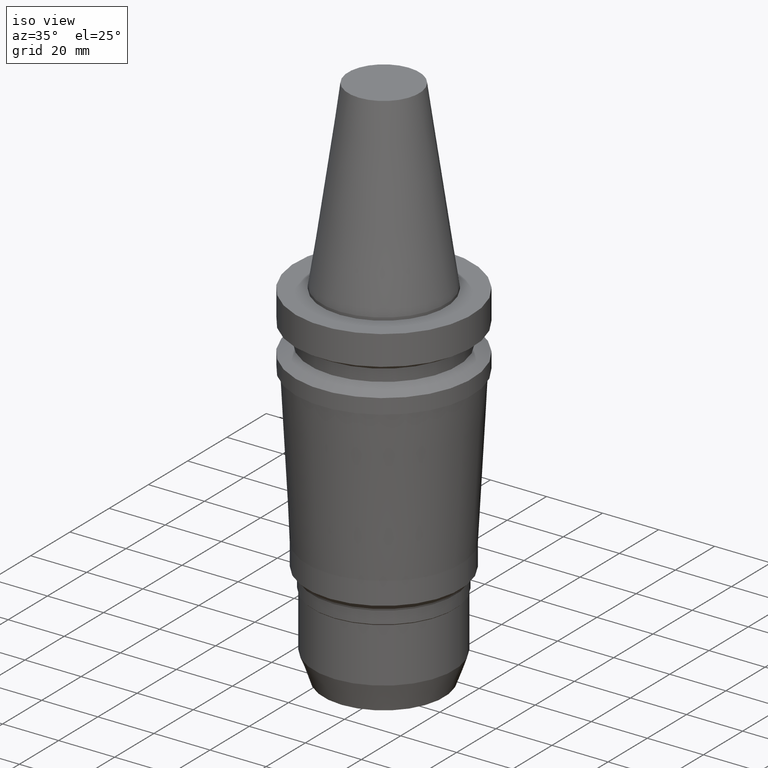
[diagram: clean part render]
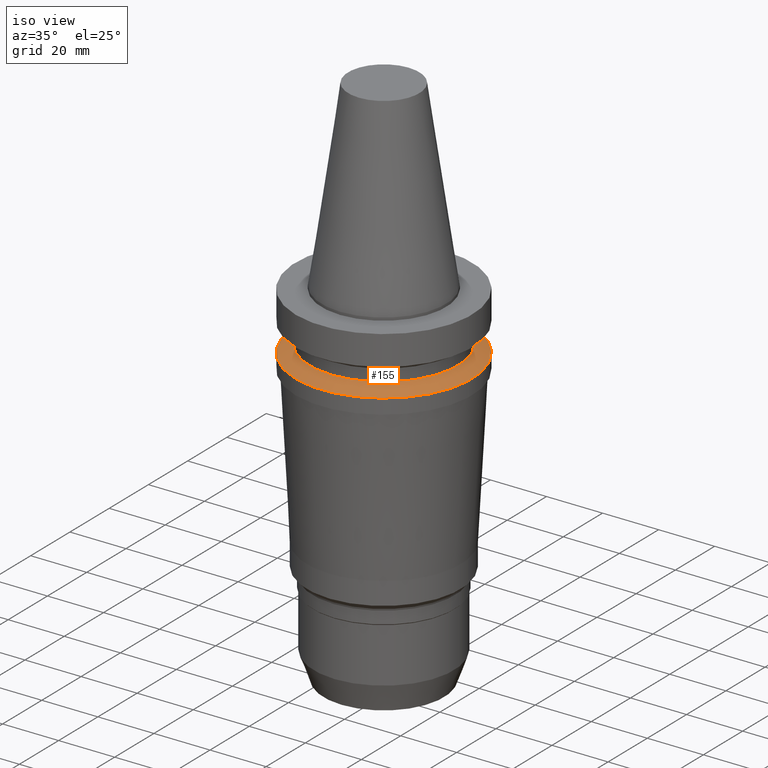
[diagram: same view with one face highlighted and labeled with its STEP entity id]
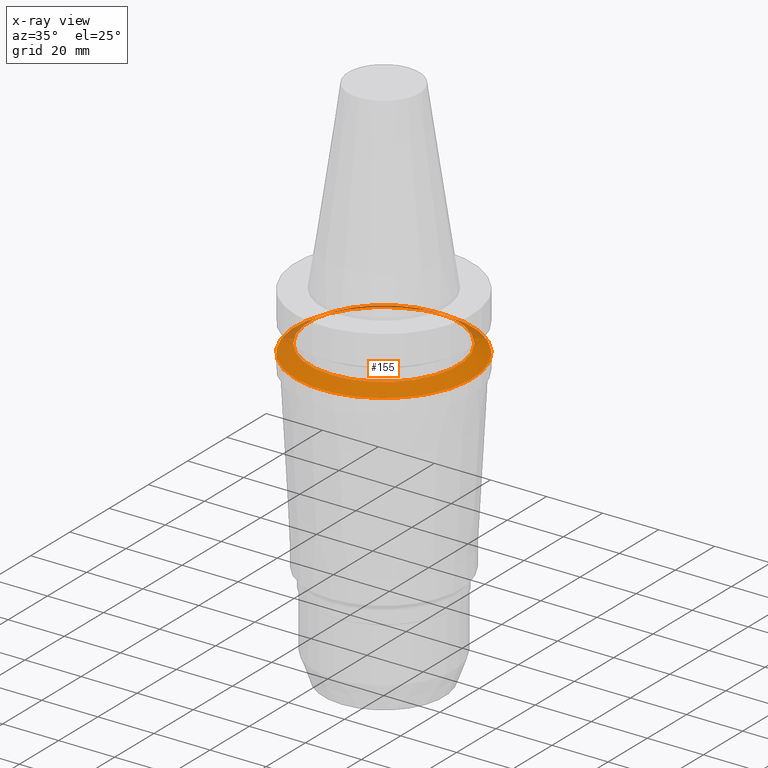
[diagram: x-ray of the same camera — body ghosted, the highlighted face saturated]
A machine part, iso view. The second image highlights one B-rep face of the part: STEP entity #155.
The next image is the same camera in x-ray: the body ghosted, the highlighted face saturated — about 10% of this face is hidden behind the body in this view.
In plain terms, the highlighted conical surface has half-angle 60 deg.
Its self-contained STEP definition (entity closure, byte-faithful):
#119=EDGE_CURVE('Unnamed[1]',#274,#274,#275,.T.);
#155=ADVANCED_FACE('Unnamed[1]',(#331,#332),#333,.T.);
#162=EDGE_CURVE('Unnamed[1]',#342,#342,#343,.T.);
#274=VERTEX_POINT('',#474);
#275=CIRCLE('',#475,26.5);
#331=FACE_BOUND('',#545,.T.);
#332=FACE_BOUND('',#546,.T.);
#333=CONICAL_SURFACE('',#547,29.0000000000003,1.04719755119651);
#342=VERTEX_POINT('',#559);
#343=CIRCLE('',#560,31.5000000000006);
#474=CARTESIAN_POINT('',(1.1479681728942E-015,26.5,-18.7477430013855));
#475=AXIS2_PLACEMENT_3D('',#679,#680,#681);
#545=EDGE_LOOP('',(#743));
#546=EDGE_LOOP('',(#744));
#547=AXIS2_PLACEMENT_3D('',#745,#746,#747);
#559=CARTESIAN_POINT('',(1.32473071268174E-015,31.5000000000007,-21.6344943473346));
#560=AXIS2_PLACEMENT_3D('',#756,#757,#758);
#679=CARTESIAN_POINT('',(1.1479681728942E-015,7.08404953639881E-014,-18.7477430013855));
#680=DIRECTION('',(6.12323399573677E-017,-7.43161200358195E-017,-1.0));
#681=DIRECTION('',(-2.76602804423233E-034,1.0,-7.43161200358195E-017));
#743=ORIENTED_EDGE('',*,*,#162,.F.);
#744=ORIENTED_EDGE('',*,*,#119,.T.);
#745=CARTESIAN_POINT('',(1.23634944278797E-015,7.07332292842185E-014,-20.1911186743601));
#746=DIRECTION('',(6.12323399573677E-017,-7.4316120035827E-017,-1.0));
#747=DIRECTION('',(-2.76602804409926E-034,1.0,-7.4316120035827E-017));
#756=CARTESIAN_POINT('',(1.32473071268174E-015,7.06259632044489E-014,-21.6344943473346));
#757=DIRECTION('',(6.12323399573677E-017,-7.43161200358333E-017,-1.0));
#758=DIRECTION('',(-2.76602804432896E-034,1.0,-7.43161200358333E-017));